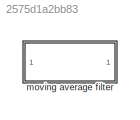
MODEL slx_2575d1a2bb83
KIND library
CONFIG AbsTol = auto
CONFIG EnableMultiTasking = off
CONFIG FixedStep = auto
CONFIG MaxStep = auto
CONFIG MinStep = auto
CONFIG RelTol = 1e-3
CONFIG SampleTimeConstraint = Unconstrained
CONFIG Solver = VariableStepAuto
CONFIG SolverName = VariableStepAuto
CONFIG StartTime = 0.0
CONFIG StopTime = 10.0
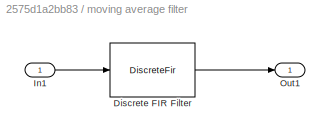
BLOCK [SubSystem] moving average filter
  Ports = [1, 1]
  RequestExecContextInheritance = off
BLOCK [DiscreteFir] moving average filter/Discrete FIR Filter
  Coefficients = (1/FilterWindowSize)*ones(1,FilterWindowSize)
  InputPortMap = u0
  OutputPortMap = o0
  Ports = [1, 1]
BLOCK [Inport] moving average filter/In1
BLOCK [Outport] moving average filter/Out1
LINE moving average filter/Discrete FIR Filter:1 -> moving average filter/Out1:1
LINE moving average filter/In1:1 -> moving average filter/Discrete FIR Filter:1
